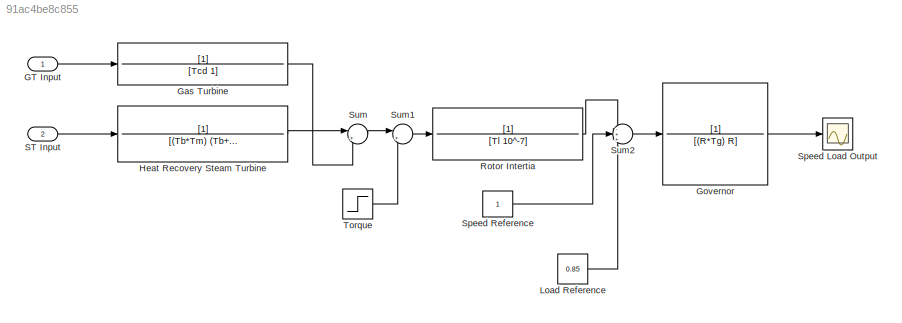
MODEL slx_91ac4be8c855
KIND model
CONFIG AbsTol = auto
CONFIG EnableMultiTasking = off
CONFIG FixedStep = auto
CONFIG MaxStep = auto
CONFIG MinStep = auto
CONFIG RelTol = 1e-3
CONFIG SampleTimeConstraint = Unconstrained
CONFIG SolverName = VariableStepAuto
CONFIG StartTime = 0.0
CONFIG StopTime = 10.0
WORKSPACE source: mxarray member
WORKSPACE C = 2
WORKSPACE R = 1
WORKSPACE Tb: Simulink.Parameter (value not decoded)
WORKSPACE Tcd: Simulink.Parameter (value not decoded)
WORKSPACE Tg: Simulink.Parameter (value not decoded)
WORKSPACE Tl: Simulink.Parameter (value not decoded)
WORKSPACE Tm: Simulink.Parameter (value not decoded)
BLOCK [Inport] GT Input
BLOCK [TransferFcn] Gas Turbine
  Denominator = [Tcd 1]
BLOCK [TransferFcn] Governor
  Denominator = [(R*Tg) R]
BLOCK [TransferFcn] Heat Recovery Steam Turbine
  Denominator = [(Tb*Tm) (Tb+Tm) 1]
BLOCK [Constant] Load Reference
  Value = 0.85
BLOCK [TransferFcn] Rotor Intertia
  Denominator = [Tl 10^-7]
BLOCK [Inport] ST Input
  Port = 2
BLOCK [Scope] Speed Load Output
  Floating = off
  NumInputPorts = 1
  Ports = [1]
  ScopeSpecificationString = Simulink.scopes.TimeScopeBlockCfg('CurrentConfiguration', extmgr.ConfigurationSet(extmgr.Configuration('Core','General UI',true),extmgr.Configuration('Core','Source UI',true),extmgr.Configuration('Sources','WiredSimulink',true),extmgr.Configuration('Visuals','Time Domain',true,'SerializedDisplays',{struct('MinYLimReal','-1249998.15','MaxYLimReal','11250001.85','YLabelReal','','MinYLimMag','     0....<+1387ch>
BLOCK [Constant] Speed Reference
BLOCK [Sum] Sum
  Inputs = |++
  Ports = [2, 1]
BLOCK [Sum] Sum1
  Inputs = |+-
  Ports = [2, 1]
BLOCK [Sum] Sum2
  Inputs = -++
  Ports = [3, 1]
BLOCK [Step] Torque
  SampleTime = 0
LINE GT Input:1 -> Gas Turbine:1
LINE Gas Turbine:1 -> Sum:2
LINE Governor:1 -> Speed Load Output:1
LINE Heat Recovery Steam Turbine:1 -> Sum:1
LINE Load Reference:1 -> Sum2:3
LINE Rotor Intertia:1 -> Sum2:1
LINE ST Input:1 -> Heat Recovery Steam Turbine:1
LINE Speed Reference:1 -> Sum2:2
LINE Sum1:1 -> Rotor Intertia:1
LINE Sum2:1 -> Governor:1
LINE Sum:1 -> Sum1:1
LINE Torque:1 -> Sum1:2
